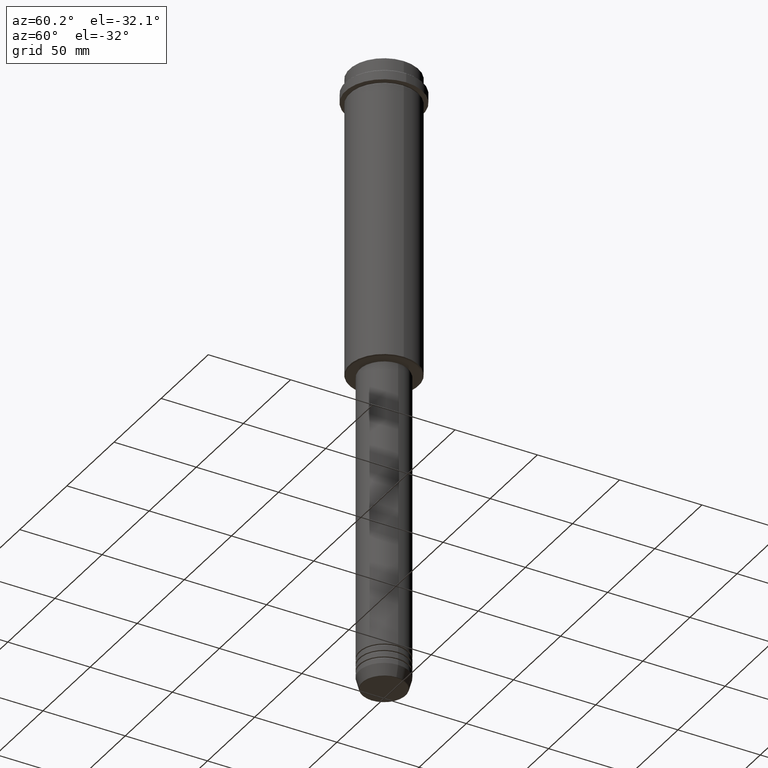
[diagram: clean part render]
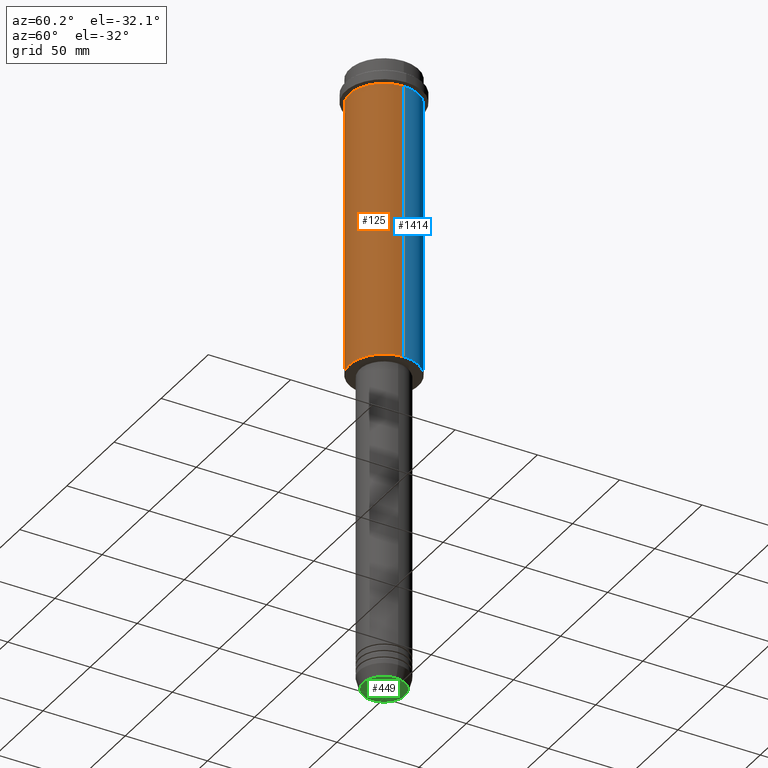
[diagram: same view with three faces highlighted in distinct colors, each labeled with its STEP entity id]
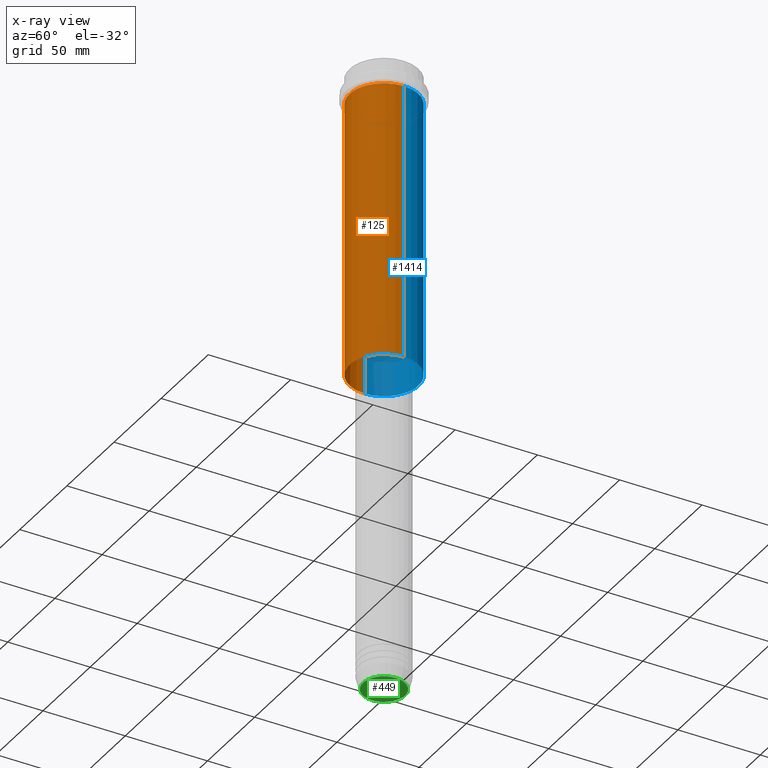
[diagram: x-ray of the same camera — body ghosted, the three highlighted faces saturated]
A machine part, auxiliary view with three faces highlighted in distinct colors.
The next image is the same camera in x-ray (body ghosted, the three faces saturated) — at least one of them is partly hidden behind the body in this view.
Their STEP definitions:

[orange] entity #125 — the highlighted cylindrical surface (partial cylindrical patch) has radius 21 mm, axis along (-0, -0, 1).
#5 = CARTESIAN_POINT ( 'NONE',  ( 0.000000000000000000, 0.000000000000000000, 0.000000000000000000 ) ) ;
#25 = DIRECTION ( 'NONE',  ( -0.000000000000000000, -0.000000000000000000, 1.000000000000000000 ) ) ;
#28 = LINE ( 'NONE', #127, #397 ) ;
#35 = DIRECTION ( 'NONE',  ( -0.000000000000000000, -0.000000000000000000, 1.000000000000000000 ) ) ;
#92 = AXIS2_PLACEMENT_3D ( 'NONE', #341, #784, #1008 ) ;
#125 = ADVANCED_FACE ( 'NONE', ( #634 ), #1077, .T. ) ;
#127 = CARTESIAN_POINT ( 'NONE',  ( -20.99999999999999645, 2.571758278209441267E-15, 0.000000000000000000 ) ) ;
#142 = AXIS2_PLACEMENT_3D ( 'NONE', #1295, #35, #150 ) ;
#150 = DIRECTION ( 'NONE',  ( 1.000000000000000000, 0.000000000000000000, 0.000000000000000000 ) ) ;
#219 = VERTEX_POINT ( 'NONE', #962 ) ;
#283 = ORIENTED_EDGE ( 'NONE', *, *, #857, .T. ) ;
#314 = VECTOR ( 'NONE', #25, 1000.000000000000000 ) ;
#330 = CARTESIAN_POINT ( 'NONE',  ( 20.99999999999999645, 0.000000000000000000, 0.000000000000000000 ) ) ;
#341 = CARTESIAN_POINT ( 'NONE',  ( 0.000000000000000000, 0.000000000000000000, -184.4999999999999432 ) ) ;
#351 = AXIS2_PLACEMENT_3D ( 'NONE', #5, #1304, #956 ) ;
#397 = VECTOR ( 'NONE', #666, 1000.000000000000000 ) ;
#446 = CIRCLE ( 'NONE', #92, 20.99999999999999645 ) ;
#557 = EDGE_CURVE ( 'NONE', #1207, #219, #28, .T. ) ;
#562 = CARTESIAN_POINT ( 'NONE',  ( -20.99999999999999645, 2.571758278209441267E-15, -184.4999999999999432 ) ) ;
#574 = ORIENTED_EDGE ( 'NONE', *, *, #709, .F. ) ;
#592 = ORIENTED_EDGE ( 'NONE', *, *, #557, .F. ) ;
#634 = FACE_OUTER_BOUND ( 'NONE', #1042, .T. ) ;
#666 = DIRECTION ( 'NONE',  ( -0.000000000000000000, -0.000000000000000000, 1.000000000000000000 ) ) ;
#678 = ORIENTED_EDGE ( 'NONE', *, *, #1200, .T. ) ;
#709 = EDGE_CURVE ( 'NONE', #219, #915, #743, .T. ) ;
#743 = CIRCLE ( 'NONE', #142, 20.99999999999999645 ) ;
#784 = DIRECTION ( 'NONE',  ( -0.000000000000000000, -0.000000000000000000, 1.000000000000000000 ) ) ;
#857 = EDGE_CURVE ( 'NONE', #1207, #1194, #446, .T. ) ;
#900 = CARTESIAN_POINT ( 'NONE',  ( 20.99999999999999645, 0.000000000000000000, -184.4999999999999432 ) ) ;
#915 = VERTEX_POINT ( 'NONE', #1147 ) ;
#956 = DIRECTION ( 'NONE',  ( 1.000000000000000000, 0.000000000000000000, 0.000000000000000000 ) ) ;
#962 = CARTESIAN_POINT ( 'NONE',  ( -20.99999999999999645, 2.571758278209441267E-15, -16.00000000000000355 ) ) ;
#1008 = DIRECTION ( 'NONE',  ( -1.000000000000000000, 0.000000000000000000, 0.000000000000000000 ) ) ;
#1042 = EDGE_LOOP ( 'NONE', ( #592, #283, #678, #574 ) ) ;
#1077 = CYLINDRICAL_SURFACE ( 'NONE', #351, 20.99999999999999645 ) ;
#1126 = LINE ( 'NONE', #330, #314 ) ;
#1147 = CARTESIAN_POINT ( 'NONE',  ( 20.99999999999999645, 0.000000000000000000, -16.00000000000000355 ) ) ;
#1194 = VERTEX_POINT ( 'NONE', #900 ) ;
#1200 = EDGE_CURVE ( 'NONE', #1194, #915, #1126, .T. ) ;
#1207 = VERTEX_POINT ( 'NONE', #562 ) ;
#1295 = CARTESIAN_POINT ( 'NONE',  ( 0.000000000000000000, 0.000000000000000000, -16.00000000000000355 ) ) ;
#1304 = DIRECTION ( 'NONE',  ( -0.000000000000000000, -0.000000000000000000, 1.000000000000000000 ) ) ;

[blue] entity #1414 — the highlighted cylindrical surface (partial cylindrical patch) has radius 21 mm, axis along (-0, -0, 1).
#6 = AXIS2_PLACEMENT_3D ( 'NONE', #46, #463, #1046 ) ;
#18 = ORIENTED_EDGE ( 'NONE', *, *, #1200, .F. ) ;
#25 = DIRECTION ( 'NONE',  ( -0.000000000000000000, -0.000000000000000000, 1.000000000000000000 ) ) ;
#26 = CIRCLE ( 'NONE', #6, 20.99999999999999645 ) ;
#28 = LINE ( 'NONE', #127, #397 ) ;
#46 = CARTESIAN_POINT ( 'NONE',  ( 0.000000000000000000, 0.000000000000000000, -16.00000000000000355 ) ) ;
#127 = CARTESIAN_POINT ( 'NONE',  ( -20.99999999999999645, 2.571758278209441267E-15, 0.000000000000000000 ) ) ;
#163 = CARTESIAN_POINT ( 'NONE',  ( 0.000000000000000000, 0.000000000000000000, 0.000000000000000000 ) ) ;
#182 = DIRECTION ( 'NONE',  ( -0.000000000000000000, -0.000000000000000000, 1.000000000000000000 ) ) ;
#219 = VERTEX_POINT ( 'NONE', #962 ) ;
#314 = VECTOR ( 'NONE', #25, 1000.000000000000000 ) ;
#330 = CARTESIAN_POINT ( 'NONE',  ( 20.99999999999999645, 0.000000000000000000, 0.000000000000000000 ) ) ;
#365 = EDGE_CURVE ( 'NONE', #915, #219, #26, .T. ) ;
#369 = DIRECTION ( 'NONE',  ( -0.000000000000000000, -0.000000000000000000, 1.000000000000000000 ) ) ;
#380 = AXIS2_PLACEMENT_3D ( 'NONE', #163, #182, #918 ) ;
#385 = CARTESIAN_POINT ( 'NONE',  ( 0.000000000000000000, 0.000000000000000000, -184.4999999999999432 ) ) ;
#397 = VECTOR ( 'NONE', #666, 1000.000000000000000 ) ;
#463 = DIRECTION ( 'NONE',  ( -0.000000000000000000, -0.000000000000000000, 1.000000000000000000 ) ) ;
#488 = EDGE_CURVE ( 'NONE', #1194, #1207, #719, .T. ) ;
#557 = EDGE_CURVE ( 'NONE', #1207, #219, #28, .T. ) ;
#562 = CARTESIAN_POINT ( 'NONE',  ( -20.99999999999999645, 2.571758278209441267E-15, -184.4999999999999432 ) ) ;
#666 = DIRECTION ( 'NONE',  ( -0.000000000000000000, -0.000000000000000000, 1.000000000000000000 ) ) ;
#690 = CYLINDRICAL_SURFACE ( 'NONE', #380, 20.99999999999999645 ) ;
#707 = ORIENTED_EDGE ( 'NONE', *, *, #557, .T. ) ;
#719 = CIRCLE ( 'NONE', #1307, 20.99999999999999645 ) ;
#869 = EDGE_LOOP ( 'NONE', ( #1246, #707, #1134, #18 ) ) ;
#900 = CARTESIAN_POINT ( 'NONE',  ( 20.99999999999999645, 0.000000000000000000, -184.4999999999999432 ) ) ;
#915 = VERTEX_POINT ( 'NONE', #1147 ) ;
#918 = DIRECTION ( 'NONE',  ( 1.000000000000000000, 0.000000000000000000, 0.000000000000000000 ) ) ;
#962 = CARTESIAN_POINT ( 'NONE',  ( -20.99999999999999645, 2.571758278209441267E-15, -16.00000000000000355 ) ) ;
#1046 = DIRECTION ( 'NONE',  ( 1.000000000000000000, 0.000000000000000000, 0.000000000000000000 ) ) ;
#1126 = LINE ( 'NONE', #330, #314 ) ;
#1134 = ORIENTED_EDGE ( 'NONE', *, *, #365, .F. ) ;
#1147 = CARTESIAN_POINT ( 'NONE',  ( 20.99999999999999645, 0.000000000000000000, -16.00000000000000355 ) ) ;
#1194 = VERTEX_POINT ( 'NONE', #900 ) ;
#1200 = EDGE_CURVE ( 'NONE', #1194, #915, #1126, .T. ) ;
#1207 = VERTEX_POINT ( 'NONE', #562 ) ;
#1246 = ORIENTED_EDGE ( 'NONE', *, *, #488, .T. ) ;
#1277 = DIRECTION ( 'NONE',  ( -1.000000000000000000, 0.000000000000000000, 0.000000000000000000 ) ) ;
#1307 = AXIS2_PLACEMENT_3D ( 'NONE', #385, #369, #1277 ) ;
#1385 = FACE_OUTER_BOUND ( 'NONE', #869, .T. ) ;
#1414 = ADVANCED_FACE ( 'NONE', ( #1385 ), #690, .T. ) ;

[green] entity #449 — the highlighted planar face has unit normal (0, -0, 1).
#144 = CIRCLE ( 'NONE', #400, 12.74069215899265828 ) ;
#148 = DIRECTION ( 'NONE',  ( 1.000000000000000000, 0.000000000000000000, 0.000000000000000000 ) ) ;
#183 = PLANE ( 'NONE',  #293 ) ;
#212 = DIRECTION ( 'NONE',  ( 0.000000000000000000, 0.000000000000000000, -1.000000000000000000 ) ) ;
#242 = DIRECTION ( 'NONE',  ( 0.000000000000000000, 0.000000000000000000, -1.000000000000000000 ) ) ;
#275 = DIRECTION ( 'NONE',  ( 0.000000000000000000, -0.000000000000000000, 1.000000000000000000 ) ) ;
#293 = AXIS2_PLACEMENT_3D ( 'NONE', #394, #275, #390 ) ;
#346 = VERTEX_POINT ( 'NONE', #994 ) ;
#390 = DIRECTION ( 'NONE',  ( 1.000000000000000000, 0.000000000000000000, 0.000000000000000000 ) ) ;
#394 = CARTESIAN_POINT ( 'NONE',  ( 0.000000000000000000, 0.000000000000000000, -380.0000000000000000 ) ) ;
#400 = AXIS2_PLACEMENT_3D ( 'NONE', #1193, #242, #148 ) ;
#433 = DIRECTION ( 'NONE',  ( 1.000000000000000000, 0.000000000000000000, 0.000000000000000000 ) ) ;
#449 = ADVANCED_FACE ( 'NONE', ( #1172 ), #183, .F. ) ;
#664 = EDGE_CURVE ( 'NONE', #346, #1235, #698, .T. ) ;
#698 = CIRCLE ( 'NONE', #1159, 12.74069215899265828 ) ;
#889 = ORIENTED_EDGE ( 'NONE', *, *, #961, .T. ) ;
#961 = EDGE_CURVE ( 'NONE', #1235, #346, #144, .T. ) ;
#984 = CARTESIAN_POINT ( 'NONE',  ( 0.000000000000000000, 0.000000000000000000, -380.0000000000000000 ) ) ;
#994 = CARTESIAN_POINT ( 'NONE',  ( -12.74069215899265828, 1.589857736427680246E-15, -380.0000000000000000 ) ) ;
#1088 = EDGE_LOOP ( 'NONE', ( #889, #1361 ) ) ;
#1159 = AXIS2_PLACEMENT_3D ( 'NONE', #984, #212, #433 ) ;
#1172 = FACE_OUTER_BOUND ( 'NONE', #1088, .T. ) ;
#1193 = CARTESIAN_POINT ( 'NONE',  ( 0.000000000000000000, 0.000000000000000000, -380.0000000000000000 ) ) ;
#1235 = VERTEX_POINT ( 'NONE', #1273 ) ;
#1273 = CARTESIAN_POINT ( 'NONE',  ( 12.74069215899265828, 0.000000000000000000, -380.0000000000000000 ) ) ;
#1361 = ORIENTED_EDGE ( 'NONE', *, *, #664, .T. ) ;